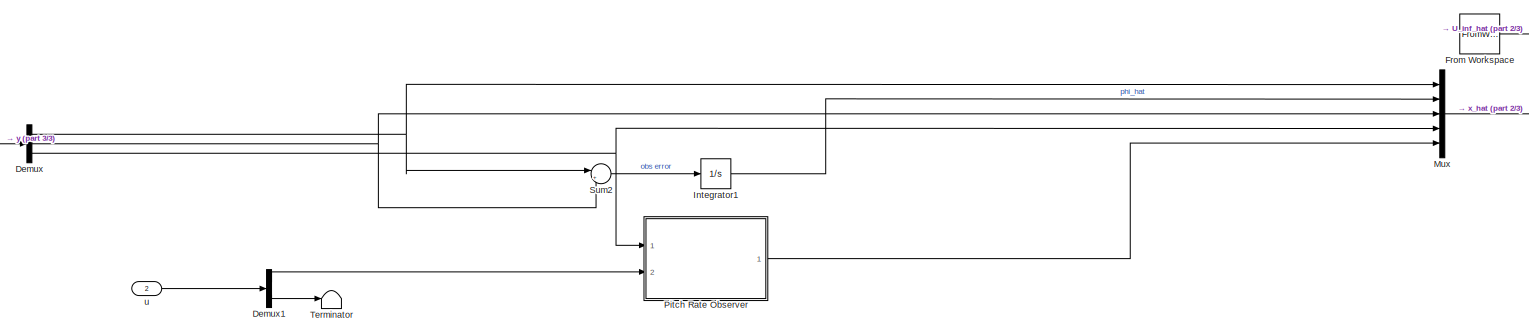
[diagram: root canvas - part 1/3, most of the canvas]
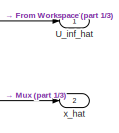
[diagram: root canvas - part 2/3, top right region]
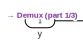
[diagram: root canvas - part 3/3, middle left region]
MODEL slx_b13f15d9d4bd
KIND model
CONFIG AbsTol = auto
CONFIG EnableMultiTasking = off
CONFIG FixedStep = DT
CONFIG MaxStep = auto
CONFIG MinStep = auto
CONFIG RelTol = 1e-3
CONFIG SampleTimeConstraint = Unconstrained
CONFIG SolverName = FixedStepAuto
CONFIG StartTime = 0.0
CONFIG StopTime = 10.0
BLOCK [Demux] Demux
  Outputs = 3
  Ports = [1, 3]
BLOCK [Demux] Demux1
  Outputs = 2
  Ports = [1, 2]
BLOCK [FromWorkspace] From Workspace
  VariableName = lidar_data
BLOCK [Integrator] Integrator1
  InitialCondition = LIDAR_phi0
  Ports = [1, 1]
BLOCK [Mux] Mux
  DisplayOption = bar
  Inputs = 5
  Ports = [5, 1]
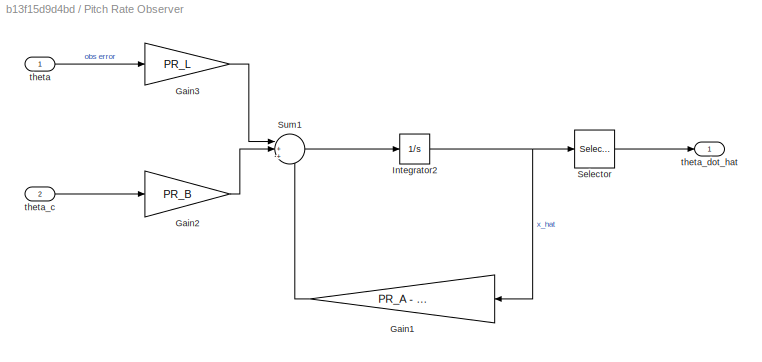
BLOCK [SubSystem] Pitch Rate Observer
  Ports = [2, 1]
  RequestExecContextInheritance = off
  TreatAsAtomicUnit = on
BLOCK [Gain] Pitch Rate Observer/Gain1
  Gain = PR_A - PR_L*PR_C
  Multiplication = Matrix(K*u)
  NameLocation = top
BLOCK [Gain] Pitch Rate Observer/Gain2
  Gain = PR_B
BLOCK [Gain] Pitch Rate Observer/Gain3
  Gain = PR_L
BLOCK [Integrator] Pitch Rate Observer/Integrator2
  InitialCondition = PR_theta0
  Ports = [1, 1]
BLOCK [Selector] Pitch Rate Observer/Selector
  IndexOptions = Index vector (dialog)
  Indices = [2]
  InputPortWidth = 2
  OutputSizes = 1
  Ports = [1, 1]
BLOCK [Sum] Pitch Rate Observer/Sum1
  Inputs = |+++
  Ports = [3, 1]
BLOCK [Inport] Pitch Rate Observer/theta
BLOCK [Inport] Pitch Rate Observer/theta_c
  Port = 2
BLOCK [Outport] Pitch Rate Observer/theta_dot_hat
BLOCK [Sum] Sum2
  Inputs = |+-
  Ports = [2, 1]
BLOCK [Terminator] Terminator
BLOCK [Outport] U_inf_hat
  PortDimensions = 1
BLOCK [Inport] u
  Port = 2
  PortDimensions = [2 1]
BLOCK [Outport] x_hat
  Port = 2
  PortDimensions = [5 1]
BLOCK [Inport] y
  PortDimensions = [3 1]
LINE Demux1:1 -> Pitch Rate Observer:2
LINE Demux1:2 -> Terminator:1
NET Demux:1 -> Mux:1, Sum2:1
NET Demux:2 -> Mux:3, Sum2:2
NET Demux:3 -> Mux:4, Pitch Rate Observer:1
LINE From Workspace:1 -> U_inf_hat:1
LINE Integrator1:1 -> Mux:2
LINE Mux:1 -> x_hat:1
LINE Pitch Rate Observer/Gain1:1 -> Pitch Rate Observer/Sum1:3
LINE Pitch Rate Observer/Gain2:1 -> Pitch Rate Observer/Sum1:2
LINE Pitch Rate Observer/Gain3:1 -> Pitch Rate Observer/Sum1:1
NET Pitch Rate Observer/Integrator2:1 -> Pitch Rate Observer/Gain1:1, Pitch Rate Observer/Selector:1
LINE Pitch Rate Observer/Selector:1 -> Pitch Rate Observer/theta_dot_hat:1
LINE Pitch Rate Observer/Sum1:1 -> Pitch Rate Observer/Integrator2:1
LINE Pitch Rate Observer/theta:1 -> Pitch Rate Observer/Gain3:1
LINE Pitch Rate Observer/theta_c:1 -> Pitch Rate Observer/Gain2:1
LINE Pitch Rate Observer:1 -> Mux:5
LINE Sum2:1 -> Integrator1:1
LINE u:1 -> Demux1:1
LINE y:1 -> Demux:1
note: NET lines group one-source signal fan-out (src -> all destinations, sorted); 1:1 wires keep LINE
